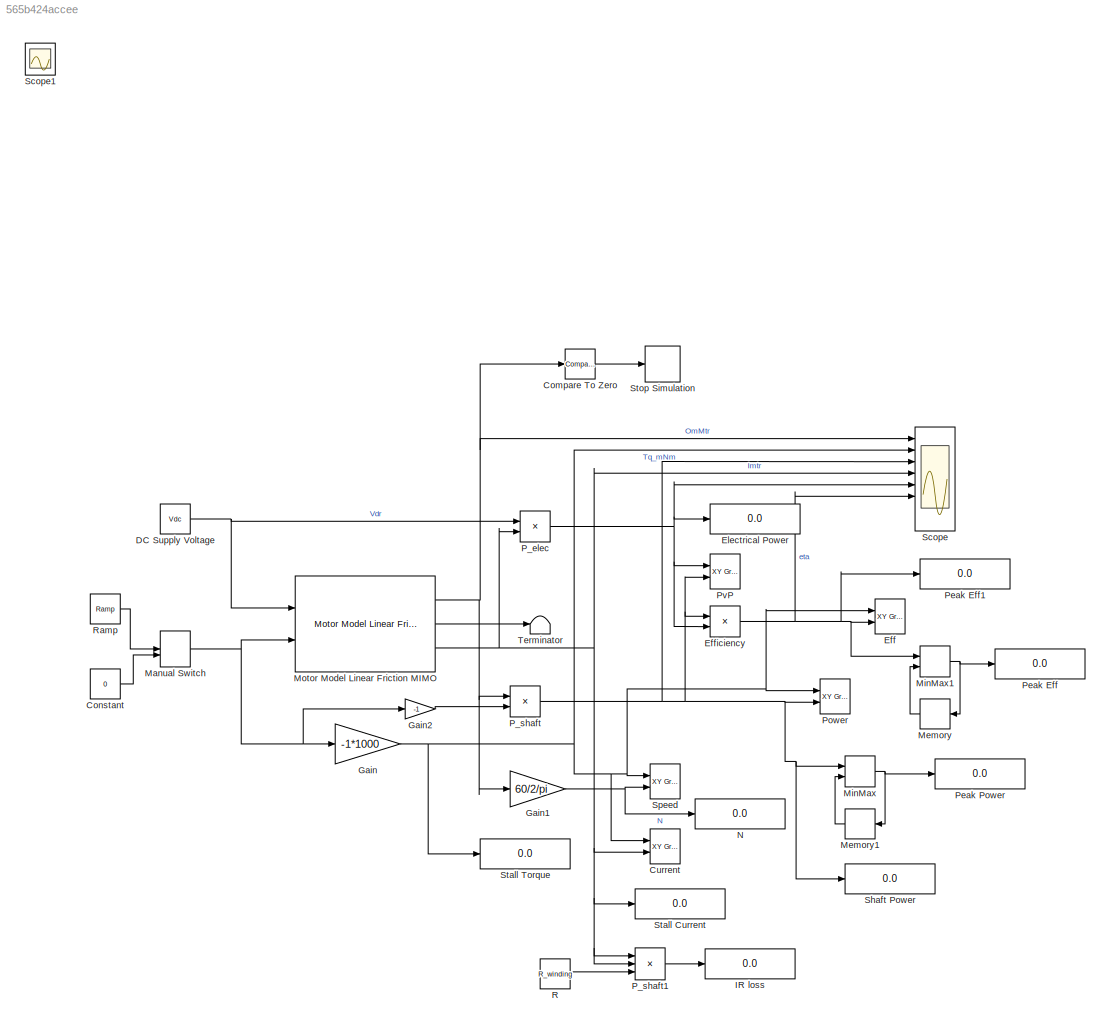
MODEL slx_565b424accee
KIND model
CONFIG AbsTol = auto
CONFIG FixedStep = auto
CONFIG MaxStep = auto
CONFIG MinStep = auto
CONFIG RelTol = 1e-4
CONFIG SampleTimeConstraint = Unconstrained
CONFIG Solver = VariableStepAuto
CONFIG SolverMode = Auto
CONFIG SolverName = VariableStepAuto
CONFIG StartTime = 0.0
CONFIG StopTime = 2000
BLOCK [Reference] Compare To Zero  REF=simulink/Logic and Bit
Operations/Compare
To Zero
  Ports = [1, 1]
  SourceBlock = simulink/Logic and Bit\nOperations/Compare\nTo Zero
  SourceType = Compare To Zero
BLOCK [Constant] Constant
  Value = 0
BLOCK [Reference] Current  REF=simulink/Sinks/XY Graph
  Ports = [2]
  SourceBlock = simulink/Sinks/XY Graph
  SourceType = XY scope.
BLOCK [Constant] DC Supply Voltage
  Value = Vdc
BLOCK [Reference] Eff  REF=simulink/Sinks/XY Graph
  Ports = [2]
  SourceBlock = simulink/Sinks/XY Graph
  SourceType = XY scope.
BLOCK [Product] Efficiency
  InputSameDT = off
  Inputs = */
  OutDataTypeStr = Inherit: Inherit via internal rule
  Ports = [2, 1]
  RndMeth = Floor
  SaturateOnIntegerOverflow = off
BLOCK [Display] Electrical Power
  Decimation = 1
  Ports = [1]
BLOCK [Gain] Gain
  Gain = -1*1000
  OutDataTypeStr = Inherit: Inherit via internal rule
  ParamDataTypeStr = Inherit: Inherit via internal rule
  SaturateOnIntegerOverflow = off
BLOCK [Gain] Gain1
  Gain = 60/2/pi
  OutDataTypeStr = Inherit: Inherit via internal rule
  ParamDataTypeStr = Inherit: Inherit via internal rule
  SaturateOnIntegerOverflow = off
BLOCK [Gain] Gain2
  Gain = -1
  OutDataTypeStr = Inherit: Inherit via internal rule
  ParamDataTypeStr = Inherit: Inherit via internal rule
  SaturateOnIntegerOverflow = off
BLOCK [Display] IR loss
  Decimation = 1
  Ports = [1]
BLOCK [ManualSwitch] Manual Switch
BLOCK [Memory] Memory
BLOCK [Memory] Memory1
BLOCK [MinMax] MinMax
  Function = max
  InputSameDT = off
  Inputs = 2
  Ports = [2, 1]
  SaturateOnIntegerOverflow = off
BLOCK [MinMax] MinMax1
  Function = max
  InputSameDT = off
  Inputs = 2
  Ports = [2, 1]
  SaturateOnIntegerOverflow = off
BLOCK [Reference] Motor Model Linear Friction MIMO  REF=LocalLib/Motor Model
Linear Friction MIMO
  Ports = [2, 3]
  SourceBlock = LocalLib/Motor Model\nLinear Friction MIMO
  SourceType = SubSystem
BLOCK [Display] N
  Decimation = 1
  Format = decimal (Stored Integer)
  Ports = [1]
BLOCK [Product] P_elec
  InputSameDT = off
  OutDataTypeStr = Inherit: Inherit via internal rule
  Ports = [2, 1]
  RndMeth = Floor
  SaturateOnIntegerOverflow = off
BLOCK [Product] P_shaft
  InputSameDT = off
  OutDataTypeStr = Inherit: Inherit via internal rule
  Ports = [2, 1]
  RndMeth = Floor
  SaturateOnIntegerOverflow = off
BLOCK [Product] P_shaft1
  InputSameDT = off
  Inputs = 3
  OutDataTypeStr = Inherit: Inherit via internal rule
  Ports = [3, 1]
  RndMeth = Floor
  SaturateOnIntegerOverflow = off
BLOCK [Display] Peak Eff
  Decimation = 1
  Ports = [1]
BLOCK [Display] Peak Eff1
  Decimation = 1
  Ports = [1]
BLOCK [Display] Peak Power
  Decimation = 1
  Ports = [1]
BLOCK [Reference] Power  REF=simulink/Sinks/XY Graph
  Ports = [2]
  SourceBlock = simulink/Sinks/XY Graph
  SourceType = XY scope.
BLOCK [Reference] PvP  REF=simulink/Sinks/XY Graph
  Ports = [2]
  SourceBlock = simulink/Sinks/XY Graph
  SourceType = XY scope.
BLOCK [Constant] R
  Value = R_winding
BLOCK [Reference] Ramp  REF=simulink/Sources/Ramp
  Ports = [0, 1]
  SourceBlock = simulink/Sources/Ramp
  SourceType = Ramp
BLOCK [Scope] Scope
  NumInputPorts = 8
  Ports = [8]
  ScopeSpecificationString = Simulink.scopes.TimeScopeBlockCfg('CurrentConfiguration', extmgr.ConfigurationSet(extmgr.Configuration('Core','General UI',true),extmgr.Configuration('Core','Source UI',true),extmgr.Configuration('Sources','WiredSimulink',true),extmgr.Configuration('Visuals','Time Domain',true,'SerializedDisplays',{struct('MinYLimReal','-306.30528','MaxYLimReal','2756.74755','YLabelReal','','MinYLimMag','0.00000',...<+6099ch>
BLOCK [Scope] Scope1
  IOType = viewer
  Ports = []
  ScopeSpecificationString = Simulink.scopes.TimeScopeBlockCfg('CurrentConfiguration', extmgr.ConfigurationSet(extmgr.Configuration('Core','General UI',true),extmgr.Configuration('Core','Source UI',true),extmgr.Configuration('Sources','WiredSimulink',true,'DataLoggingVariableName','ScopeData1'),extmgr.Configuration('Visuals','Time Domain',true,'SerializedDisplays',{struct('MinYLimReal','-1.25','MaxYLimReal','11.25','YLabelRea...<+3445ch>
BLOCK [Display] Shaft Power
  Decimation = 1
  Ports = [1]
BLOCK [Reference] Speed  REF=simulink/Sinks/XY Graph
  Ports = [2]
  SourceBlock = simulink/Sinks/XY Graph
  SourceType = XY scope.
BLOCK [Display] Stall Current
  Decimation = 1
  Ports = [1]
BLOCK [Display] Stall Torque
  Decimation = 1
  Ports = [1]
BLOCK [Stop] Stop Simulation
BLOCK [Terminator] Terminator
LINE Compare To Zero:1 -> Stop Simulation:1
LINE Constant:1 -> Manual Switch:2
NET DC Supply Voltage:1 -> Motor Model Linear Friction MIMO:1, P_elec:1
NET Efficiency:1 -> Eff:2, MinMax1:1, Peak Eff1:1, Scope:6
NET Gain1:1 -> N:1, Speed:2
LINE Gain2:1 -> P_shaft:2
NET Gain:1 -> Current:1, Eff:1, Power:1, Scope:2, Speed:1, Stall Torque:1
NET Manual Switch:1 -> Gain2:1, Gain:1, Motor Model Linear Friction MIMO:2
LINE Memory1:1 -> MinMax:2
LINE Memory:1 -> MinMax1:2
NET MinMax1:1 -> Memory:1, Peak Eff:1
NET MinMax:1 -> Memory1:1, Peak Power:1
NET Motor Model Linear Friction MIMO:1 -> Compare To Zero:1, Gain1:1, P_shaft:1, Scope:1
LINE Motor Model Linear Friction MIMO:2 -> Terminator:1
NET Motor Model Linear Friction MIMO:3 -> Current:2, P_elec:2, P_shaft1:1, P_shaft1:2, Scope:4, Stall Current:1
NET P_elec:1 -> Efficiency:2, Electrical Power:1, PvP:1, Scope:5
LINE P_shaft1:1 -> IR loss:1
NET P_shaft:1 -> Efficiency:1, MinMax:1, Power:2, PvP:2, Scope:3, Shaft Power:1
LINE R:1 -> P_shaft1:3
LINE Ramp:1 -> Manual Switch:1
note: NET lines group one-source signal fan-out (src -> all destinations, sorted); 1:1 wires keep LINE
